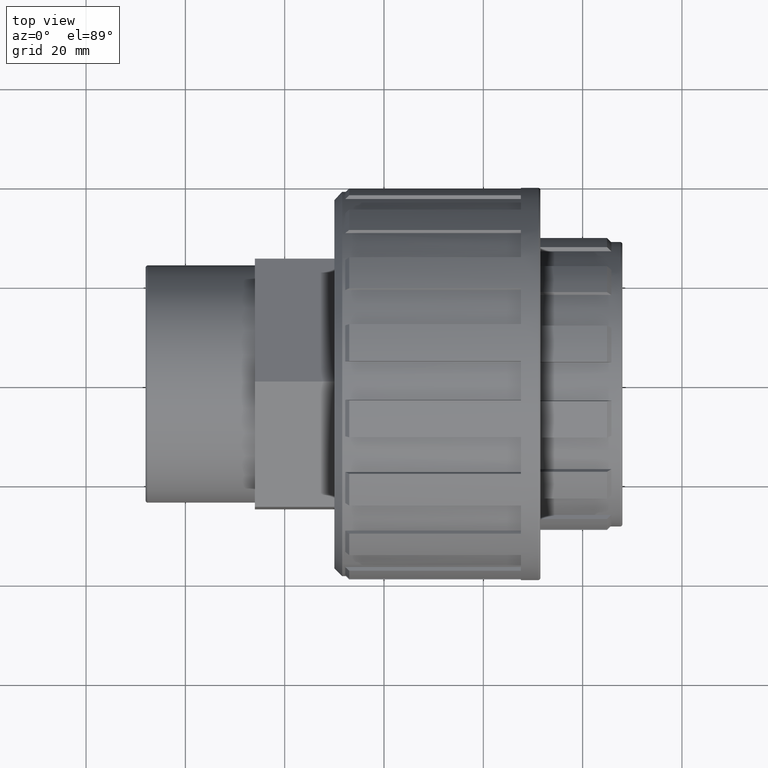
[diagram: clean part render]
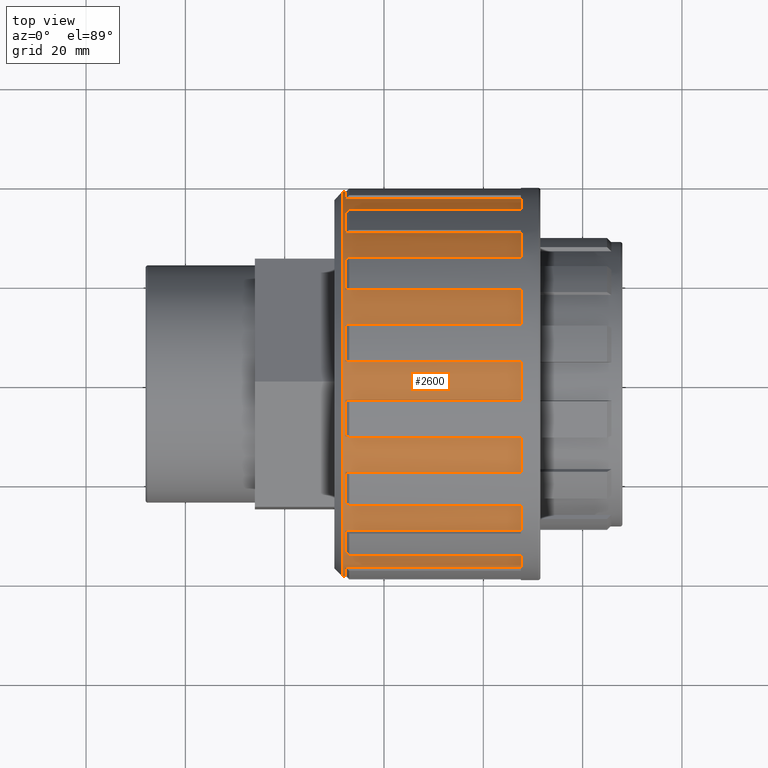
[diagram: same view with one face highlighted and labeled with its STEP entity id]
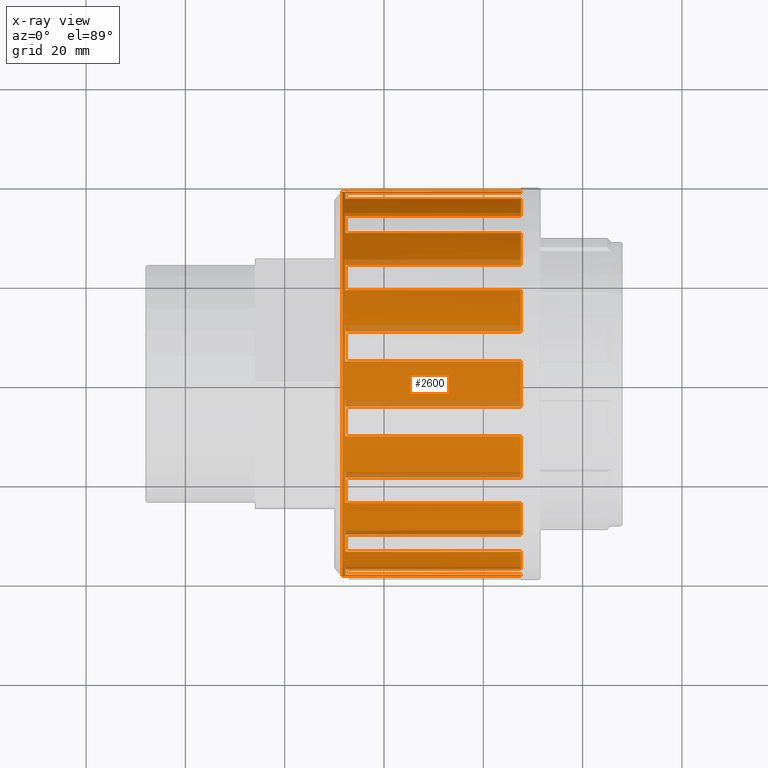
[diagram: x-ray of the same camera — body ghosted, the highlighted face saturated]
A machine part, top view. The second image highlights one B-rep face of the part: STEP entity #2600.
The next image is the same camera in x-ray: the body ghosted, the highlighted face saturated — about 14% of this face is hidden behind the body in this view.
In plain terms, the highlighted cylindrical surface (bore or boss wall) has radius 38.71 mm, axis along (-1, -0, 0).
Its self-contained STEP definition (entity closure, byte-faithful):
#63=FACE_BOUND('',#509,.T.);
#88=CYLINDRICAL_SURFACE('',#2869,38.71);
#91=CIRCLE('',#2619,38.71);
#93=CIRCLE('',#2624,38.71);
#95=CIRCLE('',#2629,38.71);
#97=CIRCLE('',#2634,38.71);
#99=CIRCLE('',#2639,38.71);
#101=CIRCLE('',#2644,38.71);
#103=CIRCLE('',#2649,38.71);
#105=CIRCLE('',#2654,38.71);
#107=CIRCLE('',#2659,38.71);
#109=CIRCLE('',#2664,38.71);
#111=CIRCLE('',#2669,38.71);
#113=CIRCLE('',#2674,38.71);
#115=CIRCLE('',#2679,38.71);
#117=CIRCLE('',#2684,38.71);
#119=CIRCLE('',#2689,38.71);
#139=CIRCLE('',#2711,38.71);
#140=CIRCLE('',#2713,38.71);
#141=CIRCLE('',#2715,38.71);
#142=CIRCLE('',#2717,38.71);
#143=CIRCLE('',#2719,38.71);
#144=CIRCLE('',#2721,38.71);
#145=CIRCLE('',#2723,38.71);
#146=CIRCLE('',#2725,38.71);
#147=CIRCLE('',#2727,38.71);
#148=CIRCLE('',#2729,38.71);
#149=CIRCLE('',#2731,38.71);
#150=CIRCLE('',#2733,38.71);
#151=CIRCLE('',#2735,38.71);
#152=CIRCLE('',#2737,38.71);
#153=CIRCLE('',#2739,38.71);
#154=CIRCLE('',#2741,38.71);
#215=CIRCLE('',#2865,38.71);
#216=CIRCLE('',#2867,38.71);
#354=FACE_OUTER_BOUND('',#508,.T.);
#508=EDGE_LOOP('',(#2293,#2294,#2295,#2296,#2297,#2298,#2299,#2300,#2301,
#2302,#2303,#2304,#2305,#2306,#2307,#2308,#2309,#2310,#2311,#2312,#2313,
#2314,#2315,#2316,#2317,#2318,#2319,#2320,#2321,#2322,#2323,#2324,#2325,
#2326,#2327,#2328,#2329,#2330,#2331,#2332,#2333,#2334,#2335,#2336,#2337,
#2338,#2339,#2340,#2341,#2342,#2343,#2344,#2345,#2346,#2347,#2348,#2349,
#2350,#2351,#2352,#2353,#2354,#2355,#2356));
#509=EDGE_LOOP('',(#2357));
#545=LINE('',#3712,#787);
#547=LINE('',#3718,#789);
#553=LINE('',#3733,#795);
#555=LINE('',#3739,#797);
#561=LINE('',#3754,#803);
#563=LINE('',#3760,#805);
#569=LINE('',#3775,#811);
#571=LINE('',#3781,#813);
#577=LINE('',#3796,#819);
#579=LINE('',#3802,#821);
#585=LINE('',#3817,#827);
#587=LINE('',#3823,#829);
#593=LINE('',#3838,#835);
#595=LINE('',#3844,#837);
#601=LINE('',#3859,#843);
#603=LINE('',#3865,#845);
#609=LINE('',#3880,#851);
#611=LINE('',#3886,#853);
#617=LINE('',#3901,#859);
#619=LINE('',#3907,#861);
#625=LINE('',#3922,#867);
#627=LINE('',#3928,#869);
#633=LINE('',#3943,#875);
#635=LINE('',#3949,#877);
#641=LINE('',#3964,#883);
#643=LINE('',#3970,#885);
#649=LINE('',#3985,#891);
#651=LINE('',#3991,#893);
#657=LINE('',#4006,#899);
#659=LINE('',#4012,#901);
#667=LINE('',#4084,#909);
#764=LINE('',#4411,#1006);
#787=VECTOR('',#2918,35.37);
#789=VECTOR('',#2922,35.37);
#795=VECTOR('',#2936,35.37);
#797=VECTOR('',#2940,35.37);
#803=VECTOR('',#2954,35.37);
#805=VECTOR('',#2958,35.37);
#811=VECTOR('',#2972,35.37);
#813=VECTOR('',#2976,35.37);
#819=VECTOR('',#2990,35.37);
#821=VECTOR('',#2994,35.37);
#827=VECTOR('',#3008,35.37);
#829=VECTOR('',#3012,35.37);
#835=VECTOR('',#3026,35.37);
#837=VECTOR('',#3030,35.37);
#843=VECTOR('',#3044,35.37);
#845=VECTOR('',#3048,35.37);
#851=VECTOR('',#3062,35.37);
#853=VECTOR('',#3066,35.37);
#859=VECTOR('',#3080,35.37);
#861=VECTOR('',#3084,35.37);
#867=VECTOR('',#3098,35.37);
#869=VECTOR('',#3102,35.37);
#875=VECTOR('',#3116,35.37);
#877=VECTOR('',#3120,35.37);
#883=VECTOR('',#3134,35.37);
#885=VECTOR('',#3138,35.37);
#891=VECTOR('',#3152,35.37);
#893=VECTOR('',#3156,35.37);
#899=VECTOR('',#3170,35.37);
#901=VECTOR('',#3174,35.37);
#909=VECTOR('',#3292,35.37);
#1006=VECTOR('',#3631,35.37);
#1021=VERTEX_POINT('',#3706);
#1023=VERTEX_POINT('',#3710);
#1024=VERTEX_POINT('',#3714);
#1026=VERTEX_POINT('',#3717);
#1029=VERTEX_POINT('',#3727);
#1031=VERTEX_POINT('',#3731);
#1032=VERTEX_POINT('',#3735);
#1034=VERTEX_POINT('',#3738);
#1037=VERTEX_POINT('',#3748);
#1039=VERTEX_POINT('',#3752);
#1040=VERTEX_POINT('',#3756);
#1042=VERTEX_POINT('',#3759);
#1045=VERTEX_POINT('',#3769);
#1047=VERTEX_POINT('',#3773);
#1048=VERTEX_POINT('',#3777);
#1050=VERTEX_POINT('',#3780);
#1053=VERTEX_POINT('',#3790);
#1055=VERTEX_POINT('',#3794);
#1056=VERTEX_POINT('',#3798);
#1058=VERTEX_POINT('',#3801);
#1061=VERTEX_POINT('',#3811);
#1063=VERTEX_POINT('',#3815);
#1064=VERTEX_POINT('',#3819);
#1066=VERTEX_POINT('',#3822);
#1069=VERTEX_POINT('',#3832);
#1071=VERTEX_POINT('',#3836);
#1072=VERTEX_POINT('',#3840);
#1074=VERTEX_POINT('',#3843);
#1077=VERTEX_POINT('',#3853);
#1079=VERTEX_POINT('',#3857);
#1080=VERTEX_POINT('',#3861);
#1082=VERTEX_POINT('',#3864);
#1085=VERTEX_POINT('',#3874);
#1087=VERTEX_POINT('',#3878);
#1088=VERTEX_POINT('',#3882);
#1090=VERTEX_POINT('',#3885);
#1093=VERTEX_POINT('',#3895);
#1095=VERTEX_POINT('',#3899);
#1096=VERTEX_POINT('',#3903);
#1098=VERTEX_POINT('',#3906);
#1101=VERTEX_POINT('',#3916);
#1103=VERTEX_POINT('',#3920);
#1104=VERTEX_POINT('',#3924);
#1106=VERTEX_POINT('',#3927);
#1109=VERTEX_POINT('',#3937);
#1111=VERTEX_POINT('',#3941);
#1112=VERTEX_POINT('',#3945);
#1114=VERTEX_POINT('',#3948);
#1117=VERTEX_POINT('',#3958);
#1119=VERTEX_POINT('',#3962);
#1120=VERTEX_POINT('',#3966);
#1122=VERTEX_POINT('',#3969);
#1125=VERTEX_POINT('',#3979);
#1127=VERTEX_POINT('',#3983);
#1128=VERTEX_POINT('',#3987);
#1130=VERTEX_POINT('',#3990);
#1133=VERTEX_POINT('',#4000);
#1135=VERTEX_POINT('',#4004);
#1136=VERTEX_POINT('',#4008);
#1138=VERTEX_POINT('',#4011);
#1145=VERTEX_POINT('',#4046);
#1146=VERTEX_POINT('',#4078);
#1147=VERTEX_POINT('',#4082);
#1256=VERTEX_POINT('',#4410);
#1257=VERTEX_POINT('',#4416);
#1284=EDGE_CURVE('',#1021,#1023,#545,.T.);
#1286=EDGE_CURVE('',#1024,#1026,#547,.T.);
#1289=EDGE_CURVE('',#1023,#1026,#91,.T.);
#1294=EDGE_CURVE('',#1029,#1031,#553,.T.);
#1296=EDGE_CURVE('',#1032,#1034,#555,.T.);
#1299=EDGE_CURVE('',#1031,#1034,#93,.T.);
#1304=EDGE_CURVE('',#1037,#1039,#561,.T.);
#1306=EDGE_CURVE('',#1040,#1042,#563,.T.);
#1309=EDGE_CURVE('',#1039,#1042,#95,.T.);
#1314=EDGE_CURVE('',#1045,#1047,#569,.T.);
#1316=EDGE_CURVE('',#1048,#1050,#571,.T.);
#1319=EDGE_CURVE('',#1047,#1050,#97,.T.);
#1324=EDGE_CURVE('',#1053,#1055,#577,.T.);
#1326=EDGE_CURVE('',#1056,#1058,#579,.T.);
#1329=EDGE_CURVE('',#1055,#1058,#99,.T.);
#1334=EDGE_CURVE('',#1061,#1063,#585,.T.);
#1336=EDGE_CURVE('',#1064,#1066,#587,.T.);
#1339=EDGE_CURVE('',#1063,#1066,#101,.T.);
#1344=EDGE_CURVE('',#1069,#1071,#593,.T.);
#1346=EDGE_CURVE('',#1072,#1074,#595,.T.);
#1349=EDGE_CURVE('',#1071,#1074,#103,.T.);
#1354=EDGE_CURVE('',#1077,#1079,#601,.T.);
#1356=EDGE_CURVE('',#1080,#1082,#603,.T.);
#1359=EDGE_CURVE('',#1079,#1082,#105,.T.);
#1364=EDGE_CURVE('',#1085,#1087,#609,.T.);
#1366=EDGE_CURVE('',#1088,#1090,#611,.T.);
#1369=EDGE_CURVE('',#1087,#1090,#107,.T.);
#1374=EDGE_CURVE('',#1093,#1095,#617,.T.);
#1376=EDGE_CURVE('',#1096,#1098,#619,.T.);
#1379=EDGE_CURVE('',#1095,#1098,#109,.T.);
#1384=EDGE_CURVE('',#1101,#1103,#625,.T.);
#1386=EDGE_CURVE('',#1104,#1106,#627,.T.);
#1389=EDGE_CURVE('',#1103,#1106,#111,.T.);
#1394=EDGE_CURVE('',#1109,#1111,#633,.T.);
#1396=EDGE_CURVE('',#1112,#1114,#635,.T.);
#1399=EDGE_CURVE('',#1111,#1114,#113,.T.);
#1404=EDGE_CURVE('',#1117,#1119,#641,.T.);
#1406=EDGE_CURVE('',#1120,#1122,#643,.T.);
#1409=EDGE_CURVE('',#1119,#1122,#115,.T.);
#1414=EDGE_CURVE('',#1125,#1127,#649,.T.);
#1416=EDGE_CURVE('',#1128,#1130,#651,.T.);
#1419=EDGE_CURVE('',#1127,#1130,#117,.T.);
#1424=EDGE_CURVE('',#1133,#1135,#657,.T.);
#1426=EDGE_CURVE('',#1136,#1138,#659,.T.);
#1429=EDGE_CURVE('',#1135,#1138,#119,.T.);
#1451=EDGE_CURVE('',#1145,#1133,#139,.T.);
#1453=EDGE_CURVE('',#1136,#1125,#140,.T.);
#1454=EDGE_CURVE('',#1128,#1117,#141,.T.);
#1455=EDGE_CURVE('',#1120,#1109,#142,.T.);
#1456=EDGE_CURVE('',#1112,#1101,#143,.T.);
#1457=EDGE_CURVE('',#1104,#1093,#144,.T.);
#1458=EDGE_CURVE('',#1096,#1085,#145,.T.);
#1459=EDGE_CURVE('',#1088,#1077,#146,.T.);
#1460=EDGE_CURVE('',#1080,#1069,#147,.T.);
#1461=EDGE_CURVE('',#1072,#1061,#148,.T.);
#1462=EDGE_CURVE('',#1064,#1053,#149,.T.);
#1463=EDGE_CURVE('',#1056,#1045,#150,.T.);
#1464=EDGE_CURVE('',#1048,#1037,#151,.T.);
#1465=EDGE_CURVE('',#1040,#1029,#152,.T.);
#1466=EDGE_CURVE('',#1032,#1021,#153,.T.);
#1468=EDGE_CURVE('',#1024,#1146,#154,.T.);
#1470=EDGE_CURVE('',#1146,#1147,#667,.T.);
#1627=EDGE_CURVE('',#1145,#1256,#764,.T.);
#1629=EDGE_CURVE('',#1147,#1256,#215,.T.);
#1630=EDGE_CURVE('',#1257,#1257,#216,.T.);
#2293=ORIENTED_EDGE('',*,*,#1451,.T.);
#2294=ORIENTED_EDGE('',*,*,#1424,.T.);
#2295=ORIENTED_EDGE('',*,*,#1429,.T.);
#2296=ORIENTED_EDGE('',*,*,#1426,.F.);
#2297=ORIENTED_EDGE('',*,*,#1453,.T.);
#2298=ORIENTED_EDGE('',*,*,#1414,.T.);
#2299=ORIENTED_EDGE('',*,*,#1419,.T.);
#2300=ORIENTED_EDGE('',*,*,#1416,.F.);
#2301=ORIENTED_EDGE('',*,*,#1454,.T.);
#2302=ORIENTED_EDGE('',*,*,#1404,.T.);
#2303=ORIENTED_EDGE('',*,*,#1409,.T.);
#2304=ORIENTED_EDGE('',*,*,#1406,.F.);
#2305=ORIENTED_EDGE('',*,*,#1455,.T.);
#2306=ORIENTED_EDGE('',*,*,#1394,.T.);
#2307=ORIENTED_EDGE('',*,*,#1399,.T.);
#2308=ORIENTED_EDGE('',*,*,#1396,.F.);
#2309=ORIENTED_EDGE('',*,*,#1456,.T.);
#2310=ORIENTED_EDGE('',*,*,#1384,.T.);
#2311=ORIENTED_EDGE('',*,*,#1389,.T.);
#2312=ORIENTED_EDGE('',*,*,#1386,.F.);
#2313=ORIENTED_EDGE('',*,*,#1457,.T.);
#2314=ORIENTED_EDGE('',*,*,#1374,.T.);
#2315=ORIENTED_EDGE('',*,*,#1379,.T.);
#2316=ORIENTED_EDGE('',*,*,#1376,.F.);
#2317=ORIENTED_EDGE('',*,*,#1458,.T.);
#2318=ORIENTED_EDGE('',*,*,#1364,.T.);
#2319=ORIENTED_EDGE('',*,*,#1369,.T.);
#2320=ORIENTED_EDGE('',*,*,#1366,.F.);
#2321=ORIENTED_EDGE('',*,*,#1459,.T.);
#2322=ORIENTED_EDGE('',*,*,#1354,.T.);
#2323=ORIENTED_EDGE('',*,*,#1359,.T.);
#2324=ORIENTED_EDGE('',*,*,#1356,.F.);
#2325=ORIENTED_EDGE('',*,*,#1460,.T.);
#2326=ORIENTED_EDGE('',*,*,#1344,.T.);
#2327=ORIENTED_EDGE('',*,*,#1349,.T.);
#2328=ORIENTED_EDGE('',*,*,#1346,.F.);
#2329=ORIENTED_EDGE('',*,*,#1461,.T.);
#2330=ORIENTED_EDGE('',*,*,#1334,.T.);
#2331=ORIENTED_EDGE('',*,*,#1339,.T.);
#2332=ORIENTED_EDGE('',*,*,#1336,.F.);
#2333=ORIENTED_EDGE('',*,*,#1462,.T.);
#2334=ORIENTED_EDGE('',*,*,#1324,.T.);
#2335=ORIENTED_EDGE('',*,*,#1329,.T.);
#2336=ORIENTED_EDGE('',*,*,#1326,.F.);
#2337=ORIENTED_EDGE('',*,*,#1463,.T.);
#2338=ORIENTED_EDGE('',*,*,#1314,.T.);
#2339=ORIENTED_EDGE('',*,*,#1319,.T.);
#2340=ORIENTED_EDGE('',*,*,#1316,.F.);
#2341=ORIENTED_EDGE('',*,*,#1464,.T.);
#2342=ORIENTED_EDGE('',*,*,#1304,.T.);
#2343=ORIENTED_EDGE('',*,*,#1309,.T.);
#2344=ORIENTED_EDGE('',*,*,#1306,.F.);
#2345=ORIENTED_EDGE('',*,*,#1465,.T.);
#2346=ORIENTED_EDGE('',*,*,#1294,.T.);
#2347=ORIENTED_EDGE('',*,*,#1299,.T.);
#2348=ORIENTED_EDGE('',*,*,#1296,.F.);
#2349=ORIENTED_EDGE('',*,*,#1466,.T.);
#2350=ORIENTED_EDGE('',*,*,#1284,.T.);
#2351=ORIENTED_EDGE('',*,*,#1289,.T.);
#2352=ORIENTED_EDGE('',*,*,#1286,.F.);
#2353=ORIENTED_EDGE('',*,*,#1468,.T.);
#2354=ORIENTED_EDGE('',*,*,#1470,.T.);
#2355=ORIENTED_EDGE('',*,*,#1629,.T.);
#2356=ORIENTED_EDGE('',*,*,#1627,.F.);
#2357=ORIENTED_EDGE('',*,*,#1630,.F.);
#2600=ADVANCED_FACE('',(#354,#63),#88,.T.);
#2619=AXIS2_PLACEMENT_3D('',#3723,#2927,#2928);
#2624=AXIS2_PLACEMENT_3D('',#3744,#2945,#2946);
#2629=AXIS2_PLACEMENT_3D('',#3765,#2963,#2964);
#2634=AXIS2_PLACEMENT_3D('',#3786,#2981,#2982);
#2639=AXIS2_PLACEMENT_3D('',#3807,#2999,#3000);
#2644=AXIS2_PLACEMENT_3D('',#3828,#3017,#3018);
#2649=AXIS2_PLACEMENT_3D('',#3849,#3035,#3036);
#2654=AXIS2_PLACEMENT_3D('',#3870,#3053,#3054);
#2659=AXIS2_PLACEMENT_3D('',#3891,#3071,#3072);
#2664=AXIS2_PLACEMENT_3D('',#3912,#3089,#3090);
#2669=AXIS2_PLACEMENT_3D('',#3933,#3107,#3108);
#2674=AXIS2_PLACEMENT_3D('',#3954,#3125,#3126);
#2679=AXIS2_PLACEMENT_3D('',#3975,#3143,#3144);
#2684=AXIS2_PLACEMENT_3D('',#3996,#3161,#3162);
#2689=AXIS2_PLACEMENT_3D('',#4017,#3179,#3180);
#2711=AXIS2_PLACEMENT_3D('',#4047,#3225,#3226);
#2713=AXIS2_PLACEMENT_3D('',#4050,#3230,#3231);
#2715=AXIS2_PLACEMENT_3D('',#4052,#3234,#3235);
#2717=AXIS2_PLACEMENT_3D('',#4054,#3238,#3239);
#2719=AXIS2_PLACEMENT_3D('',#4056,#3242,#3243);
#2721=AXIS2_PLACEMENT_3D('',#4058,#3246,#3247);
#2723=AXIS2_PLACEMENT_3D('',#4060,#3250,#3251);
#2725=AXIS2_PLACEMENT_3D('',#4062,#3254,#3255);
#2727=AXIS2_PLACEMENT_3D('',#4064,#3258,#3259);
#2729=AXIS2_PLACEMENT_3D('',#4066,#3262,#3263);
#2731=AXIS2_PLACEMENT_3D('',#4068,#3266,#3267);
#2733=AXIS2_PLACEMENT_3D('',#4070,#3270,#3271);
#2735=AXIS2_PLACEMENT_3D('',#4072,#3274,#3275);
#2737=AXIS2_PLACEMENT_3D('',#4074,#3278,#3279);
#2739=AXIS2_PLACEMENT_3D('',#4076,#3282,#3283);
#2741=AXIS2_PLACEMENT_3D('',#4080,#3287,#3288);
#2865=AXIS2_PLACEMENT_3D('',#4414,#3635,#3636);
#2867=AXIS2_PLACEMENT_3D('',#4417,#3639,#3640);
#2869=AXIS2_PLACEMENT_3D('',#4420,#3643,#3644);
#2918=DIRECTION('',(1.,1.3014116341555E-16,-2.30545305750464E-17));
#2922=DIRECTION('',(1.,1.3014116341555E-16,-2.30545305750464E-17));
#2927=DIRECTION('center_axis',(-1.,-1.83857078678387E-16,8.0466995789506E-19));
#2928=DIRECTION('ref_axis',(-7.11024760377896E-17,0.38268343236509,-0.923879532511286));
#2936=DIRECTION('',(1.,1.4320050594409E-16,-4.2599217859882E-17));
#2940=DIRECTION('',(1.,1.4320050594409E-16,-4.2599217859882E-17));
#2945=DIRECTION('center_axis',(-1.,-1.8431288759492E-16,1.48683620905188E-18));
#2946=DIRECTION('ref_axis',(-1.31380244644376E-16,0.707106781186548,-0.707106781186547));
#2954=DIRECTION('',(1.,1.62745193228925E-16,-5.56585603884221E-17));
#2958=DIRECTION('',(1.,1.62745193228925E-16,-5.56585603884221E-17));
#2963=DIRECTION('center_axis',(-1.,-1.84995053846077E-16,1.9426451255844E-18));
#2964=DIRECTION('ref_axis',(-1.71656561968739E-16,0.923879532511287,-0.382683432365089));
#2972=DIRECTION('',(1.,1.85799723803972E-16,-6.02443916439313E-17));
#2976=DIRECTION('',(1.,1.85799723803972E-16,-6.02443916439313E-17));
#2981=DIRECTION('center_axis',(-1.,-1.85799723803972E-16,2.1027039318686E-18));
#2982=DIRECTION('ref_axis',(-1.85799723803972E-16,1.,1.08985985367491E-15));
#2990=DIRECTION('',(1.,2.08854254379018E-16,-5.56585603884221E-17));
#2994=DIRECTION('',(1.,2.08854254379018E-16,-5.56585603884221E-17));
#2999=DIRECTION('center_axis',(-1.,-1.86604393761867E-16,1.94264512558441E-18));
#3000=DIRECTION('ref_axis',(-1.71656561968739E-16,0.923879532511286,0.38268343236509));
#3008=DIRECTION('',(1.,2.28398941663854E-16,-4.2599217859882E-17));
#3012=DIRECTION('',(1.,2.28398941663854E-16,-4.2599217859882E-17));
#3017=DIRECTION('center_axis',(-1.,-1.87286560013024E-16,1.48683620905191E-18));
#3018=DIRECTION('ref_axis',(-1.31380244644376E-16,0.707106781186547,0.707106781186548));
#3026=DIRECTION('',(1.,2.41458284192394E-16,-2.30545305750463E-17));
#3030=DIRECTION('',(1.,2.41458284192394E-16,-2.30545305750463E-17));
#3035=DIRECTION('center_axis',(-1.,-1.87742368929556E-16,8.04669957895038E-19));
#3036=DIRECTION('ref_axis',(-7.11024760377894E-17,0.382683432365089,0.923879532511287));
#3044=DIRECTION('',(1.,2.46044115447903E-16,4.31408307542741E-32));
#3048=DIRECTION('',(1.,2.46044115447903E-16,4.31408307542741E-32));
#3053=DIRECTION('center_axis',(-1.,-1.8790242773584E-16,-2.31111593326468E-32));
#3054=DIRECTION('ref_axis',(1.0189368447701E-31,-5.16249404372328E-16,1.));
#3062=DIRECTION('',(1.,2.41458284192394E-16,2.30545305750464E-17));
#3066=DIRECTION('',(1.,2.41458284192394E-16,2.30545305750464E-17));
#3071=DIRECTION('center_axis',(-1.,-1.87742368929556E-16,-8.04669957895025E-19));
#3072=DIRECTION('ref_axis',(7.11024760377896E-17,-0.38268343236509,0.923879532511287));
#3080=DIRECTION('',(1.,2.28398941663854E-16,4.2599217859882E-17));
#3084=DIRECTION('',(1.,2.28398941663854E-16,4.2599217859882E-17));
#3089=DIRECTION('center_axis',(-1.,-1.87286560013023E-16,-1.48683620905189E-18));
#3090=DIRECTION('ref_axis',(1.31380244644376E-16,-0.707106781186548,0.707106781186547));
#3098=DIRECTION('',(1.,2.08854254379018E-16,5.56585603884221E-17));
#3102=DIRECTION('',(1.,2.08854254379018E-16,5.56585603884221E-17));
#3107=DIRECTION('center_axis',(-1.,-1.86604393761867E-16,-1.94264512558439E-18));
#3108=DIRECTION('ref_axis',(1.71656561968739E-16,-0.923879532511287,0.38268343236509));
#3116=DIRECTION('',(1.,1.85799723803972E-16,6.02443916439312E-17));
#3120=DIRECTION('',(1.,1.85799723803972E-16,6.02443916439312E-17));
#3125=DIRECTION('center_axis',(-1.,-1.85799723803972E-16,-2.10270393186855E-18));
#3126=DIRECTION('ref_axis',(1.85799723803972E-16,-1.,-2.29444179721035E-16));
#3134=DIRECTION('',(1.,1.62745193228925E-16,5.56585603884221E-17));
#3138=DIRECTION('',(1.,1.62745193228925E-16,5.56585603884221E-17));
#3143=DIRECTION('center_axis',(-1.,-1.84995053846077E-16,-1.94264512558438E-18));
#3144=DIRECTION('ref_axis',(1.71656561968739E-16,-0.923879532511287,-0.38268343236509));
#3152=DIRECTION('',(1.,1.4320050594409E-16,4.2599217859882E-17));
#3156=DIRECTION('',(1.,1.4320050594409E-16,4.2599217859882E-17));
#3161=DIRECTION('center_axis',(-1.,-1.8431288759492E-16,-1.4868362090519E-18));
#3162=DIRECTION('ref_axis',(1.31380244644376E-16,-0.707106781186547,-0.707106781186548));
#3170=DIRECTION('',(1.,1.30141163415549E-16,2.30545305750463E-17));
#3174=DIRECTION('',(1.,1.30141163415549E-16,2.30545305750463E-17));
#3179=DIRECTION('center_axis',(-1.,-1.83857078678387E-16,-8.04669957895048E-19));
#3180=DIRECTION('ref_axis',(7.11024760377895E-17,-0.38268343236509,-0.923879532511287));
#3225=DIRECTION('center_axis',(-1.,-1.83697019872103E-16,0.));
#3226=DIRECTION('ref_axis',(0.,0.,1.));
#3230=DIRECTION('center_axis',(-1.,-1.83697019872103E-16,0.));
#3231=DIRECTION('ref_axis',(0.,0.,1.));
#3234=DIRECTION('center_axis',(-1.,-1.83697019872103E-16,0.));
#3235=DIRECTION('ref_axis',(0.,0.,1.));
#3238=DIRECTION('center_axis',(-1.,-1.83697019872103E-16,0.));
#3239=DIRECTION('ref_axis',(0.,0.,1.));
#3242=DIRECTION('center_axis',(-1.,-1.83697019872103E-16,0.));
#3243=DIRECTION('ref_axis',(0.,0.,1.));
#3246=DIRECTION('center_axis',(-1.,-1.83697019872103E-16,0.));
#3247=DIRECTION('ref_axis',(0.,0.,1.));
#3250=DIRECTION('center_axis',(-1.,-1.83697019872103E-16,0.));
#3251=DIRECTION('ref_axis',(0.,0.,1.));
#3254=DIRECTION('center_axis',(-1.,-1.83697019872103E-16,0.));
#3255=DIRECTION('ref_axis',(0.,0.,1.));
#3258=DIRECTION('center_axis',(-1.,-1.83697019872103E-16,0.));
#3259=DIRECTION('ref_axis',(0.,0.,1.));
#3262=DIRECTION('center_axis',(-1.,-1.83697019872103E-16,0.));
#3263=DIRECTION('ref_axis',(0.,0.,1.));
#3266=DIRECTION('center_axis',(-1.,-1.83697019872103E-16,0.));
#3267=DIRECTION('ref_axis',(0.,0.,1.));
#3270=DIRECTION('center_axis',(-1.,-1.83697019872103E-16,0.));
#3271=DIRECTION('ref_axis',(0.,0.,1.));
#3274=DIRECTION('center_axis',(-1.,-1.83697019872103E-16,0.));
#3275=DIRECTION('ref_axis',(0.,0.,1.));
#3278=DIRECTION('center_axis',(-1.,-1.83697019872103E-16,0.));
#3279=DIRECTION('ref_axis',(0.,0.,1.));
#3282=DIRECTION('center_axis',(-1.,-1.83697019872103E-16,0.));
#3283=DIRECTION('ref_axis',(0.,0.,1.));
#3287=DIRECTION('center_axis',(-1.,-1.83697019872103E-16,0.));
#3288=DIRECTION('ref_axis',(0.,0.,1.));
#3292=DIRECTION('',(1.,1.2555533216004E-16,0.));
#3631=DIRECTION('',(1.,1.2555533216004E-16,0.));
#3635=DIRECTION('center_axis',(-1.,-1.83697019872103E-16,0.));
#3636=DIRECTION('ref_axis',(0.,0.,-1.));
#3639=DIRECTION('center_axis',(-1.,-1.83697019872103E-16,0.));
#3640=DIRECTION('ref_axis',(-1.85799723803972E-16,1.,0.));
#3643=DIRECTION('center_axis',(-1.,-1.83697019872103E-16,0.));
#3644=DIRECTION('ref_axis',(1.85799723803972E-16,-1.,0.));
#3706=CARTESIAN_POINT('',(-7.80000000000001,34.1027429618207,18.3157588562416));
#3710=CARTESIAN_POINT('',(27.57,34.1027429618207,18.3157588562416));
#3712=CARTESIAN_POINT('',(-7.80000000000001,34.1027429618207,18.3157588562416));
#3714=CARTESIAN_POINT('',(-7.80000000000001,37.0654780951912,11.1630835155392));
#3717=CARTESIAN_POINT('',(27.57,37.0654780951912,11.1630835155392));
#3718=CARTESIAN_POINT('',(-7.80000000000001,37.0654780951912,11.1630835155392));
#3723=CARTESIAN_POINT('Origin',(27.57,1.1984567993323E-14,-7.99626981766754E-16));
#3727=CARTESIAN_POINT('',(-7.8,24.4976887594416,29.9721094593879));
#3731=CARTESIAN_POINT('',(27.57,24.4976887594416,29.9721094593879));
#3733=CARTESIAN_POINT('',(-7.8,24.4976887594416,29.9721094593879));
#3735=CARTESIAN_POINT('',(-7.80000000000001,29.9721094593879,24.4976887594417));
#3738=CARTESIAN_POINT('',(27.57,29.9721094593879,24.4976887594417));
#3739=CARTESIAN_POINT('',(-7.80000000000001,29.9721094593879,24.4976887594417));
#3744=CARTESIAN_POINT('Origin',(27.57,1.24375202933476E-14,-1.47751800419616E-15));
#3748=CARTESIAN_POINT('',(-7.8,11.1630835155392,37.0654780951912));
#3752=CARTESIAN_POINT('',(27.57,11.1630835155392,37.0654780951912));
#3754=CARTESIAN_POINT('',(-7.8,11.1630835155392,37.0654780951912));
#3756=CARTESIAN_POINT('',(-7.8,18.3157588562416,34.1027429618207));
#3759=CARTESIAN_POINT('',(27.57,18.3157588562416,34.1027429618207));
#3760=CARTESIAN_POINT('',(-7.8,18.3157588562416,34.1027429618207));
#3765=CARTESIAN_POINT('Origin',(27.57,1.31154113157771E-14,-1.93047030422076E-15));
#3769=CARTESIAN_POINT('',(-7.8,-3.87100000000004,38.5159636903973));
#3773=CARTESIAN_POINT('',(27.57,-3.87100000000003,38.5159636903973));
#3775=CARTESIAN_POINT('',(-7.8,-3.87100000000004,38.5159636903973));
#3777=CARTESIAN_POINT('',(-7.8,3.87099999999996,38.5159636903973));
#3780=CARTESIAN_POINT('',(27.57,3.87099999999997,38.5159636903973));
#3781=CARTESIAN_POINT('',(-7.8,3.87099999999996,38.5159636903973));
#3786=CARTESIAN_POINT('Origin',(27.57,1.39150382975438E-14,-2.08952600018463E-15));
#3790=CARTESIAN_POINT('',(-7.8,-18.3157588562416,34.1027429618206));
#3794=CARTESIAN_POINT('',(27.57,-18.3157588562416,34.1027429618206));
#3796=CARTESIAN_POINT('',(-7.8,-18.3157588562416,34.1027429618206));
#3798=CARTESIAN_POINT('',(-7.8,-11.1630835155392,37.0654780951912));
#3801=CARTESIAN_POINT('',(27.57,-11.1630835155392,37.0654780951912));
#3802=CARTESIAN_POINT('',(-7.8,-11.1630835155392,37.0654780951912));
#3807=CARTESIAN_POINT('Origin',(27.57,1.47146652793106E-14,-1.93047030422076E-15));
#3811=CARTESIAN_POINT('',(-7.79999999999999,-29.9721094593879,24.4976887594416));
#3815=CARTESIAN_POINT('',(27.57,-29.9721094593879,24.4976887594416));
#3817=CARTESIAN_POINT('',(-7.79999999999999,-29.9721094593879,24.4976887594416));
#3819=CARTESIAN_POINT('',(-7.79999999999999,-24.4976887594416,29.9721094593879));
#3822=CARTESIAN_POINT('',(27.57,-24.4976887594416,29.9721094593879));
#3823=CARTESIAN_POINT('',(-7.79999999999999,-24.4976887594416,29.9721094593879));
#3828=CARTESIAN_POINT('Origin',(27.57,1.539255630174E-14,-1.47751800419616E-15));
#3832=CARTESIAN_POINT('',(-7.79999999999999,-37.0654780951912,11.1630835155392));
#3836=CARTESIAN_POINT('',(27.57,-37.0654780951912,11.1630835155392));
#3838=CARTESIAN_POINT('',(-7.79999999999999,-37.0654780951912,11.1630835155392));
#3840=CARTESIAN_POINT('',(-7.79999999999999,-34.1027429618207,18.3157588562416));
#3843=CARTESIAN_POINT('',(27.57,-34.1027429618207,18.3157588562416));
#3844=CARTESIAN_POINT('',(-7.79999999999999,-34.1027429618207,18.3157588562416));
#3849=CARTESIAN_POINT('Origin',(27.57,1.58455086017646E-14,-7.99626981766752E-16));
#3853=CARTESIAN_POINT('',(-7.79999999999999,-38.5159636903973,-3.87100000000002));
#3857=CARTESIAN_POINT('',(27.57,-38.5159636903972,-3.87100000000002));
#3859=CARTESIAN_POINT('',(-7.79999999999999,-38.5159636903973,-3.87100000000002));
#3861=CARTESIAN_POINT('',(-7.79999999999999,-38.5159636903973,3.87099999999998));
#3864=CARTESIAN_POINT('',(27.57,-38.5159636903973,3.87099999999998));
#3865=CARTESIAN_POINT('',(-7.79999999999999,-38.5159636903973,3.87099999999998));
#3870=CARTESIAN_POINT('Origin',(27.57,1.60045642977284E-14,1.97215226305253E-30));
#3874=CARTESIAN_POINT('',(-7.79999999999999,-34.1027429618207,-18.3157588562416));
#3878=CARTESIAN_POINT('',(27.57,-34.1027429618206,-18.3157588562416));
#3880=CARTESIAN_POINT('',(-7.79999999999999,-34.1027429618207,-18.3157588562416));
#3882=CARTESIAN_POINT('',(-7.79999999999999,-37.0654780951912,-11.1630835155392));
#3885=CARTESIAN_POINT('',(27.57,-37.0654780951912,-11.1630835155392));
#3886=CARTESIAN_POINT('',(-7.79999999999999,-37.0654780951912,-11.1630835155392));
#3891=CARTESIAN_POINT('Origin',(27.57,1.58455086017646E-14,7.99626981766754E-16));
#3895=CARTESIAN_POINT('',(-7.8,-24.4976887594416,-29.9721094593879));
#3899=CARTESIAN_POINT('',(27.57,-24.4976887594416,-29.9721094593879));
#3901=CARTESIAN_POINT('',(-7.8,-24.4976887594416,-29.9721094593879));
#3903=CARTESIAN_POINT('',(-7.79999999999999,-29.9721094593879,-24.4976887594416));
#3906=CARTESIAN_POINT('',(27.57,-29.9721094593879,-24.4976887594416));
#3907=CARTESIAN_POINT('',(-7.79999999999999,-29.9721094593879,-24.4976887594416));
#3912=CARTESIAN_POINT('Origin',(27.57,1.539255630174E-14,1.47751800419615E-15));
#3916=CARTESIAN_POINT('',(-7.8,-11.1630835155392,-37.0654780951912));
#3920=CARTESIAN_POINT('',(27.57,-11.1630835155392,-37.0654780951912));
#3922=CARTESIAN_POINT('',(-7.8,-11.1630835155392,-37.0654780951912));
#3924=CARTESIAN_POINT('',(-7.8,-18.3157588562416,-34.1027429618207));
#3927=CARTESIAN_POINT('',(27.57,-18.3157588562416,-34.1027429618207));
#3928=CARTESIAN_POINT('',(-7.8,-18.3157588562416,-34.1027429618207));
#3933=CARTESIAN_POINT('Origin',(27.57,1.47146652793106E-14,1.93047030422076E-15));
#3937=CARTESIAN_POINT('',(-7.8,3.87100000000002,-38.5159636903973));
#3941=CARTESIAN_POINT('',(27.57,3.87100000000002,-38.5159636903973));
#3943=CARTESIAN_POINT('',(-7.8,3.87100000000002,-38.5159636903973));
#3945=CARTESIAN_POINT('',(-7.8,-3.87099999999998,-38.5159636903973));
#3948=CARTESIAN_POINT('',(27.57,-3.87099999999998,-38.5159636903973));
#3949=CARTESIAN_POINT('',(-7.8,-3.87099999999998,-38.5159636903973));
#3954=CARTESIAN_POINT('Origin',(27.57,1.39150382975438E-14,2.08952600018463E-15));
#3958=CARTESIAN_POINT('',(-7.8,18.3157588562416,-34.1027429618207));
#3962=CARTESIAN_POINT('',(27.57,18.3157588562416,-34.1027429618207));
#3964=CARTESIAN_POINT('',(-7.8,18.3157588562416,-34.1027429618207));
#3966=CARTESIAN_POINT('',(-7.8,11.1630835155392,-37.0654780951912));
#3969=CARTESIAN_POINT('',(27.57,11.1630835155392,-37.0654780951912));
#3970=CARTESIAN_POINT('',(-7.8,11.1630835155392,-37.0654780951912));
#3975=CARTESIAN_POINT('Origin',(27.57,1.3115411315777E-14,1.93047030422076E-15));
#3979=CARTESIAN_POINT('',(-7.80000000000001,29.9721094593879,-24.4976887594416));
#3983=CARTESIAN_POINT('',(27.57,29.9721094593879,-24.4976887594416));
#3985=CARTESIAN_POINT('',(-7.80000000000001,29.9721094593879,-24.4976887594416));
#3987=CARTESIAN_POINT('',(-7.80000000000001,24.4976887594416,-29.9721094593879));
#3990=CARTESIAN_POINT('',(27.57,24.4976887594416,-29.9721094593879));
#3991=CARTESIAN_POINT('',(-7.80000000000001,24.4976887594416,-29.9721094593879));
#3996=CARTESIAN_POINT('Origin',(27.57,1.24375202933476E-14,1.47751800419616E-15));
#4000=CARTESIAN_POINT('',(-7.80000000000001,37.0654780951912,-11.1630835155392));
#4004=CARTESIAN_POINT('',(27.57,37.0654780951912,-11.1630835155392));
#4006=CARTESIAN_POINT('',(-7.80000000000001,37.0654780951912,-11.1630835155392));
#4008=CARTESIAN_POINT('',(-7.80000000000001,34.1027429618207,-18.3157588562416));
#4011=CARTESIAN_POINT('',(27.57,34.1027429618207,-18.3157588562416));
#4012=CARTESIAN_POINT('',(-7.80000000000001,34.1027429618207,-18.3157588562416));
#4017=CARTESIAN_POINT('Origin',(27.57,1.1984567993323E-14,7.99626981766752E-16));
#4046=CARTESIAN_POINT('',(-7.80000000000001,38.5159636903973,-3.871));
#4047=CARTESIAN_POINT('Origin',(-7.8,7.38462019885854E-15,0.));
#4050=CARTESIAN_POINT('Origin',(-7.8,7.38462019885854E-15,0.));
#4052=CARTESIAN_POINT('Origin',(-7.8,7.38462019885854E-15,0.));
#4054=CARTESIAN_POINT('Origin',(-7.8,7.38462019885854E-15,0.));
#4056=CARTESIAN_POINT('Origin',(-7.8,7.38462019885854E-15,0.));
#4058=CARTESIAN_POINT('Origin',(-7.8,7.38462019885854E-15,0.));
#4060=CARTESIAN_POINT('Origin',(-7.8,7.38462019885854E-15,0.));
#4062=CARTESIAN_POINT('Origin',(-7.8,7.38462019885854E-15,0.));
#4064=CARTESIAN_POINT('Origin',(-7.8,7.38462019885854E-15,0.));
#4066=CARTESIAN_POINT('Origin',(-7.8,7.38462019885854E-15,0.));
#4068=CARTESIAN_POINT('Origin',(-7.8,7.38462019885854E-15,0.));
#4070=CARTESIAN_POINT('Origin',(-7.8,7.38462019885854E-15,0.));
#4072=CARTESIAN_POINT('Origin',(-7.8,7.38462019885854E-15,0.));
#4074=CARTESIAN_POINT('Origin',(-7.8,7.38462019885854E-15,0.));
#4076=CARTESIAN_POINT('Origin',(-7.8,7.38462019885854E-15,0.));
#4078=CARTESIAN_POINT('',(-7.80000000000001,38.5159636903973,3.871));
#4080=CARTESIAN_POINT('Origin',(-7.8,7.38462019885854E-15,0.));
#4082=CARTESIAN_POINT('',(27.57,38.5159636903973,3.871));
#4084=CARTESIAN_POINT('',(-7.80000000000001,38.5159636903973,3.871));
#4410=CARTESIAN_POINT('',(27.57,38.5159636903973,-3.871));
#4411=CARTESIAN_POINT('',(-7.80000000000001,38.5159636903973,-3.871));
#4414=CARTESIAN_POINT('Origin',(27.57,1.18255122973592E-14,0.));
#4416=CARTESIAN_POINT('',(-8.42,-38.71,4.7406077594994E-15));
#4417=CARTESIAN_POINT('Origin',(-8.42,7.27072804653784E-15,0.));
#4420=CARTESIAN_POINT('Origin',(-8.9,7.18255347699923E-15,0.));